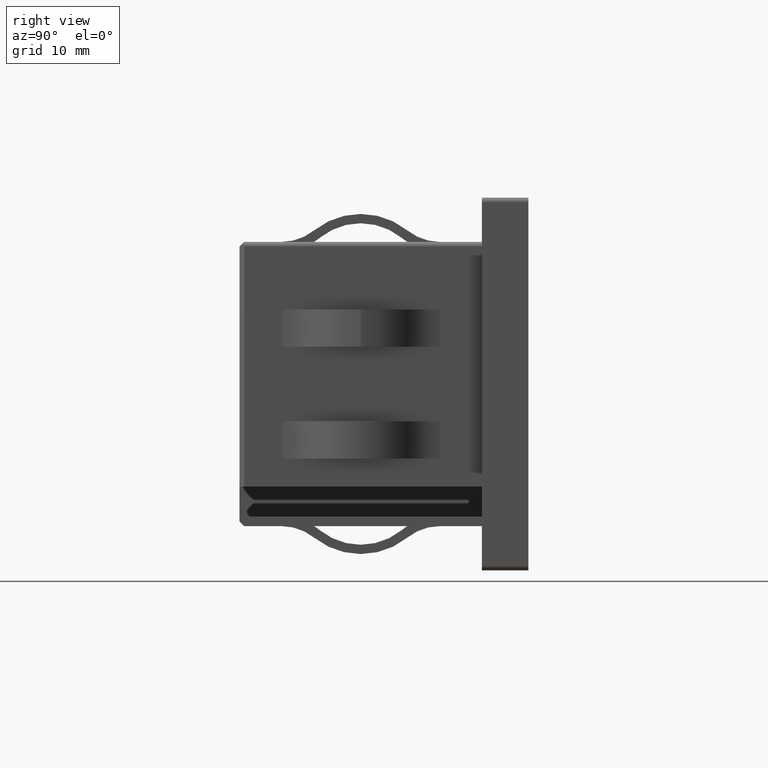
[diagram: clean part render]
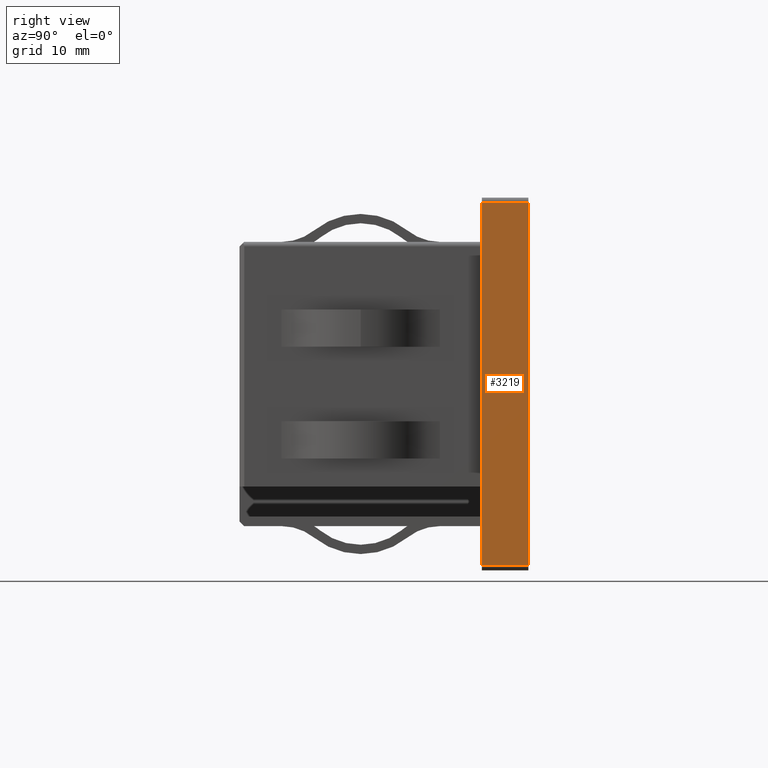
[diagram: same view with one face highlighted and labeled with its STEP entity id]
A machine part, right view. The second image highlights one B-rep face of the part: STEP entity #3219.
In plain terms, the highlighted planar face has unit normal (-1, 0, 0).
Its self-contained STEP definition (entity closure, byte-faithful):
#502 = CARTESIAN_POINT ( 'NONE',  ( 30.00000000000000000, 5.000000000000000000, -19.99999999999999600 ) ) ;
#639 = ORIENTED_EDGE ( 'NONE', *, *, #3328, .T. ) ;
#2007 = EDGE_LOOP ( 'NONE', ( #12342, #9911, #14103, #639 ) ) ;
#2212 = VERTEX_POINT ( 'NONE', #10823 ) ;
#2456 = LINE ( 'NONE', #10979, #3318 ) ;
#2713 = VECTOR ( 'NONE', #16100, 1000.000000000000000 ) ;
#3219 = ADVANCED_FACE ( 'NONE', ( #15818 ), #8256, .F. ) ;
#3318 = VECTOR ( 'NONE', #11160, 1000.000000000000000 ) ;
#3328 = EDGE_CURVE ( 'NONE', #3638, #16732, #4074, .T. ) ;
#3638 = VERTEX_POINT ( 'NONE', #15245 ) ;
#4074 = LINE ( 'NONE', #8923, #12896 ) ;
#7877 = CARTESIAN_POINT ( 'NONE',  ( 30.00000000000000000, 5.000000000000000000, -19.49999999999999600 ) ) ;
#8009 = CARTESIAN_POINT ( 'NONE',  ( 30.00000000000000000, 0.0000000000000000000, -19.49999999999999600 ) ) ;
#8256 = PLANE ( 'NONE',  #10885 ) ;
#8923 = CARTESIAN_POINT ( 'NONE',  ( 30.00000000000000700, 5.000000000000000000, 19.50000000000000400 ) ) ;
#9471 = VECTOR ( 'NONE', #10900, 1000.000000000000000 ) ;
#9911 = ORIENTED_EDGE ( 'NONE', *, *, #12811, .T. ) ;
#10823 = CARTESIAN_POINT ( 'NONE',  ( 30.00000000000000000, 5.000000000000000000, -19.49999999999999600 ) ) ;
#10853 = EDGE_CURVE ( 'NONE', #3638, #2212, #12612, .T. ) ;
#10885 = AXIS2_PLACEMENT_3D ( 'NONE', #15391, #17994, #10969 ) ;
#10900 = DIRECTION ( 'NONE',  ( -0.0000000000000000000, 1.000000000000000000, -0.0000000000000000000 ) ) ;
#10969 = DIRECTION ( 'NONE',  ( 1.734723475976807100E-016, 0.0000000000000000000, 1.000000000000000000 ) ) ;
#10979 = CARTESIAN_POINT ( 'NONE',  ( 30.00000000000000000, 0.0000000000000000000, -19.99999999999999600 ) ) ;
#11160 = DIRECTION ( 'NONE',  ( -1.734723475976807100E-016, -0.0000000000000000000, -1.000000000000000000 ) ) ;
#11905 = CARTESIAN_POINT ( 'NONE',  ( 30.00000000000000700, 0.0000000000000000000, 19.50000000000000400 ) ) ;
#12342 = ORIENTED_EDGE ( 'NONE', *, *, #12574, .T. ) ;
#12574 = EDGE_CURVE ( 'NONE', #16732, #16942, #2456, .T. ) ;
#12612 = LINE ( 'NONE', #502, #2713 ) ;
#12811 = EDGE_CURVE ( 'NONE', #16942, #2212, #16121, .T. ) ;
#12896 = VECTOR ( 'NONE', #17233, 1000.000000000000000 ) ;
#14103 = ORIENTED_EDGE ( 'NONE', *, *, #10853, .F. ) ;
#15245 = CARTESIAN_POINT ( 'NONE',  ( 30.00000000000000700, 5.000000000000000000, 19.50000000000000400 ) ) ;
#15391 = CARTESIAN_POINT ( 'NONE',  ( 30.00000000000000000, 5.000000000000000000, -19.99999999999999600 ) ) ;
#15818 = FACE_OUTER_BOUND ( 'NONE', #2007, .T. ) ;
#16100 = DIRECTION ( 'NONE',  ( -1.734723475976807100E-016, -0.0000000000000000000, -1.000000000000000000 ) ) ;
#16121 = LINE ( 'NONE', #7877, #9471 ) ;
#16732 = VERTEX_POINT ( 'NONE', #11905 ) ;
#16942 = VERTEX_POINT ( 'NONE', #8009 ) ;
#17233 = DIRECTION ( 'NONE',  ( 0.0000000000000000000, -1.000000000000000000, 0.0000000000000000000 ) ) ;
#17994 = DIRECTION ( 'NONE',  ( -1.000000000000000000, 0.0000000000000000000, 1.734723475976807100E-016 ) ) ;